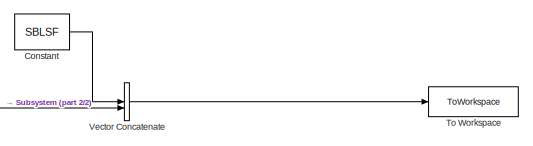
[diagram: root canvas - part 1/2, middle right region]
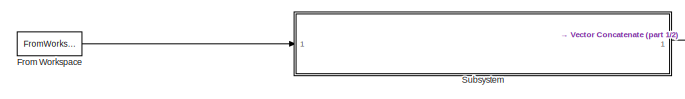
[diagram: root canvas - part 2/2, bottom left region]
MODEL slx_9d5c046d7466
KIND model
CONFIG AbsTol = auto
CONFIG EnableMultiTasking = off
CONFIG FixedStep = 1
CONFIG MaxStep = auto
CONFIG MinStep = auto
CONFIG RelTol = 1e-3
CONFIG SampleTimeConstraint = Unconstrained
CONFIG SolverName = FixedStepAuto
CONFIG StartTime = 0.0
CONFIG StopTime = 0
BLOCK [Constant] Constant
  Value = SBLSF
BLOCK [FromWorkspace] From Workspace
  VariableName = LSF_frame
BLOCK [SubSystem] Subsystem
  ReferencedSubsystem = convolutional_encoder_LSF
BLOCK [ToWorkspace] To Workspace
  FixptAsFi = on
  MaxDataPoints = inf
  SampleTime = -1
  Save2DSignal = 2-D array (concatenate along first dimension)
  VariableName = LSF
BLOCK [Concatenate] Vector Concatenate
LINE Constant:1 -> Vector Concatenate:1
LINE From Workspace:1 -> Subsystem:1
LINE Subsystem:1 -> Vector Concatenate:2
LINE Vector Concatenate:1 -> To Workspace:1
